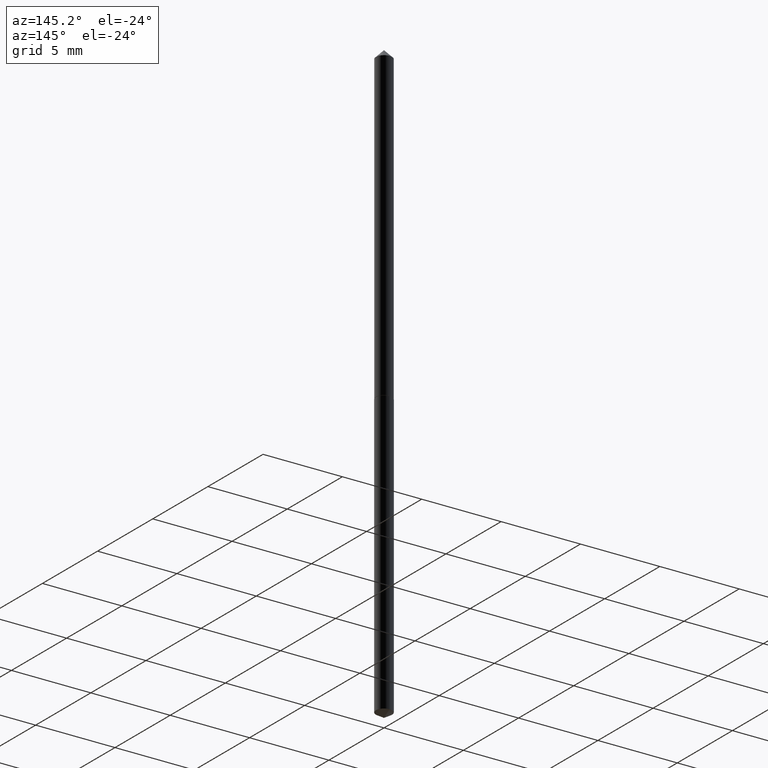
[diagram: clean part render]
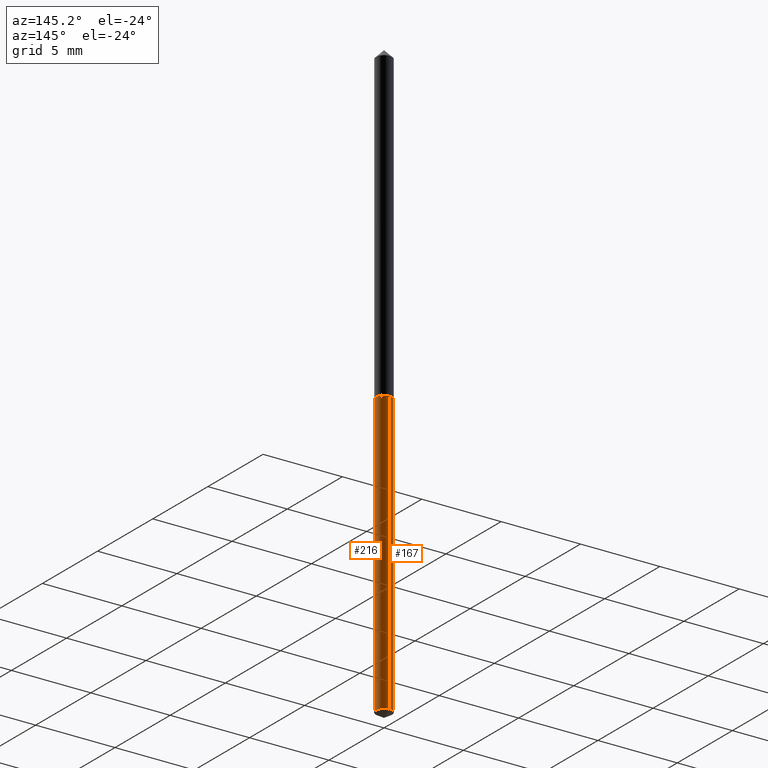
[diagram: same view with one multi-face feature highlighted, each face labeled with its STEP entity id]
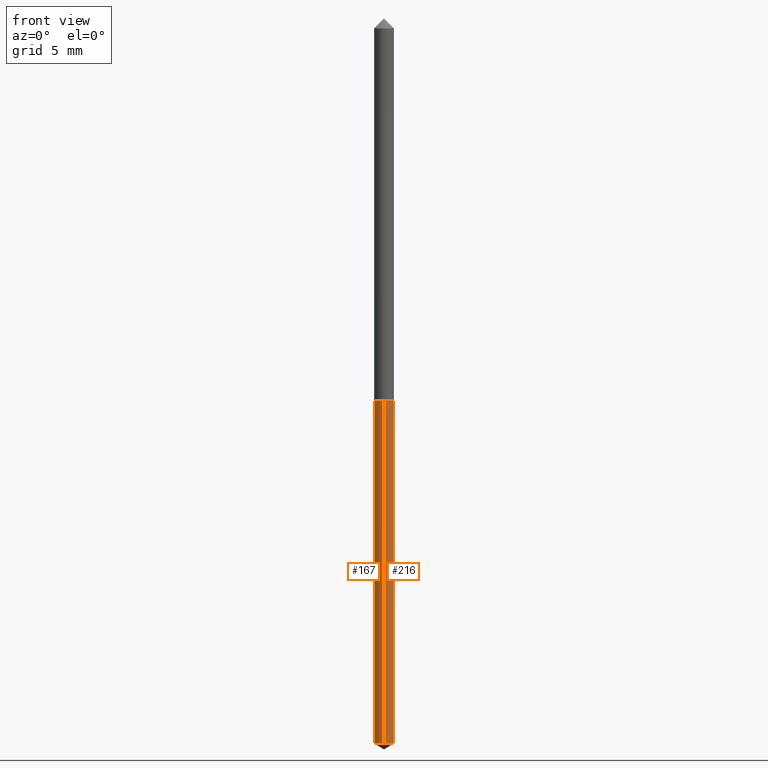
[diagram: same view with one multi-face feature highlighted, each face labeled with its STEP entity id]
A machine part, auxiliary view. The highlighted faces form ONE feature: a constant-radius fillet chain: 2 tangent blend faces with common blend radius 0.508 mm. The faces share edges in the B-rep.
A second angle (front view) of the same feature is appended — it is thin or edge-on in the first view.
Their STEP definitions:
[1] entity #216 (Cylinder):
#15 = CARTESIAN_POINT ( 'NONE',  ( -1.396592535536889283E-16, -0.02000000000000519765, -1.487982787619448688 ) ) ;
#23 = EDGE_CURVE ( 'NONE', #100, #287, #76, .T. ) ;
#31 = AXIS2_PLACEMENT_3D ( 'NONE', #347, #233, #350 ) ;
#33 = VERTEX_POINT ( 'NONE', #206 ) ;
#37 = VECTOR ( 'NONE', #131, 39.37007874015748143 ) ;
#47 = DIRECTION ( 'NONE',  ( -2.445556676142021675E-29, 3.491355504063638295E-15, 1.000000000000000000 ) ) ;
#50 = EDGE_CURVE ( 'NONE', #33, #173, #293, .T. ) ;
#51 = DIRECTION ( 'NONE',  ( -2.445556676142021675E-29, 3.491355504063638689E-15, 1.000000000000000000 ) ) ;
#70 = CARTESIAN_POINT ( 'NONE',  ( -1.396592535537060120E-16, -0.02000000000000275863, -0.7900000000000000355 ) ) ;
#72 = VECTOR ( 'NONE', #47, 39.37007874015748143 ) ;
#76 = LINE ( 'NONE', #70, #72 ) ;
#100 = VERTEX_POINT ( 'NONE', #15 ) ;
#112 = CIRCLE ( 'NONE', #333, 0.02000000000000000042 ) ;
#124 = EDGE_CURVE ( 'NONE', #287, #173, #212, .T. ) ;
#131 = DIRECTION ( 'NONE',  ( -2.445556676142021675E-29, 3.491355504063638295E-15, 1.000000000000000000 ) ) ;
#141 = ORIENTED_EDGE ( 'NONE', *, *, #23, .F. ) ;
#159 = CARTESIAN_POINT ( 'NONE',  ( 1.421085471520393179E-16, 0.01999999999999724221, -0.7900000000000003686 ) ) ;
#161 = CARTESIAN_POINT ( 'NONE',  ( 1.931920356886258349E-29, -2.758270257686085290E-15, -0.7900000000000001465 ) ) ;
#173 = VERTEX_POINT ( 'NONE', #238 ) ;
#189 = CARTESIAN_POINT ( 'NONE',  ( -1.396592535537060120E-16, -0.02000000000000275863, -0.7900000000000000355 ) ) ;
#194 = AXIS2_PLACEMENT_3D ( 'NONE', #161, #51, #269 ) ;
#195 = DIRECTION ( 'NONE',  ( -6.982962677686265922E-15, -1.000000000000000000, 0.000000000000000000 ) ) ;
#206 = CARTESIAN_POINT ( 'NONE',  ( 1.421085471520564263E-16, 0.01999999999999480665, -1.487982787619448688 ) ) ;
#212 = CIRCLE ( 'NONE', #31, 0.02000000000000000042 ) ;
#216 = ADVANCED_FACE ( 'NONE', ( #297 ), #240, .T. ) ;
#233 = DIRECTION ( 'NONE',  ( -2.445556676142021675E-29, 3.491355504063638689E-15, 1.000000000000000000 ) ) ;
#238 = CARTESIAN_POINT ( 'NONE',  ( 1.421085471520565496E-16, 0.01999999999999724221, -0.7900000000000003686 ) ) ;
#240 = CYLINDRICAL_SURFACE ( 'NONE', #194, 0.02000000000000000042 ) ;
#266 = EDGE_CURVE ( 'NONE', #100, #33, #112, .T. ) ;
#269 = DIRECTION ( 'NONE',  ( -6.982962677686265922E-15, -1.000000000000000000, 6.829619984160658243E-15 ) ) ;
#284 = ORIENTED_EDGE ( 'NONE', *, *, #266, .T. ) ;
#287 = VERTEX_POINT ( 'NONE', #189 ) ;
#293 = LINE ( 'NONE', #159, #37 ) ;
#297 = FACE_OUTER_BOUND ( 'NONE', #306, .T. ) ;
#302 = CARTESIAN_POINT ( 'NONE',  ( 3.638876822981220103E-29, -5.195176304982929067E-15, -1.487982787619448688 ) ) ;
#305 = DIRECTION ( 'NONE',  ( -2.445556676142021675E-29, 3.491355504063638689E-15, 1.000000000000000000 ) ) ;
#306 = EDGE_LOOP ( 'NONE', ( #284, #314, #312, #141 ) ) ;
#312 = ORIENTED_EDGE ( 'NONE', *, *, #124, .F. ) ;
#314 = ORIENTED_EDGE ( 'NONE', *, *, #50, .T. ) ;
#333 = AXIS2_PLACEMENT_3D ( 'NONE', #302, #305, #195 ) ;
#347 = CARTESIAN_POINT ( 'NONE',  ( 1.931920356886258349E-29, -2.758270257686085290E-15, -0.7900000000000001465 ) ) ;
#350 = DIRECTION ( 'NONE',  ( -6.982962677686265922E-15, -1.000000000000000000, 6.829619984160658243E-15 ) ) ;
[2] entity #167 (Cylinder):
#15 = CARTESIAN_POINT ( 'NONE',  ( -1.396592535536889283E-16, -0.02000000000000519765, -1.487982787619448688 ) ) ;
#21 = DIRECTION ( 'NONE',  ( -2.445556676142021675E-29, 3.491355504063638689E-15, 1.000000000000000000 ) ) ;
#23 = EDGE_CURVE ( 'NONE', #100, #287, #76, .T. ) ;
#33 = VERTEX_POINT ( 'NONE', #206 ) ;
#37 = VECTOR ( 'NONE', #131, 39.37007874015748143 ) ;
#42 = DIRECTION ( 'NONE',  ( -6.982962677686265922E-15, -1.000000000000000000, 6.829619984160658243E-15 ) ) ;
#47 = DIRECTION ( 'NONE',  ( -2.445556676142021675E-29, 3.491355504063638295E-15, 1.000000000000000000 ) ) ;
#50 = EDGE_CURVE ( 'NONE', #33, #173, #293, .T. ) ;
#70 = CARTESIAN_POINT ( 'NONE',  ( -1.396592535537060120E-16, -0.02000000000000275863, -0.7900000000000000355 ) ) ;
#72 = VECTOR ( 'NONE', #47, 39.37007874015748143 ) ;
#76 = LINE ( 'NONE', #70, #72 ) ;
#91 = EDGE_CURVE ( 'NONE', #173, #287, #286, .T. ) ;
#100 = VERTEX_POINT ( 'NONE', #15 ) ;
#110 = CARTESIAN_POINT ( 'NONE',  ( 3.638876822981220103E-29, -5.195176304982929067E-15, -1.487982787619448688 ) ) ;
#129 = ORIENTED_EDGE ( 'NONE', *, *, #50, .F. ) ;
#131 = DIRECTION ( 'NONE',  ( -2.445556676142021675E-29, 3.491355504063638295E-15, 1.000000000000000000 ) ) ;
#134 = AXIS2_PLACEMENT_3D ( 'NONE', #267, #21, #136 ) ;
#136 = DIRECTION ( 'NONE',  ( -6.982962677686265922E-15, -1.000000000000000000, 6.829619984160658243E-15 ) ) ;
#138 = DIRECTION ( 'NONE',  ( -2.445556676142021675E-29, 3.491355504063638689E-15, 1.000000000000000000 ) ) ;
#147 = AXIS2_PLACEMENT_3D ( 'NONE', #110, #138, #327 ) ;
#154 = AXIS2_PLACEMENT_3D ( 'NONE', #158, #325, #42 ) ;
#158 = CARTESIAN_POINT ( 'NONE',  ( 1.931920356886258349E-29, -2.758270257686085290E-15, -0.7900000000000001465 ) ) ;
#159 = CARTESIAN_POINT ( 'NONE',  ( 1.421085471520393179E-16, 0.01999999999999724221, -0.7900000000000003686 ) ) ;
#167 = ADVANCED_FACE ( 'NONE', ( #296 ), #259, .T. ) ;
#171 = EDGE_LOOP ( 'NONE', ( #129, #340, #258, #243 ) ) ;
#173 = VERTEX_POINT ( 'NONE', #238 ) ;
#189 = CARTESIAN_POINT ( 'NONE',  ( -1.396592535537060120E-16, -0.02000000000000275863, -0.7900000000000000355 ) ) ;
#191 = EDGE_CURVE ( 'NONE', #33, #100, #300, .T. ) ;
#206 = CARTESIAN_POINT ( 'NONE',  ( 1.421085471520564263E-16, 0.01999999999999480665, -1.487982787619448688 ) ) ;
#238 = CARTESIAN_POINT ( 'NONE',  ( 1.421085471520565496E-16, 0.01999999999999724221, -0.7900000000000003686 ) ) ;
#243 = ORIENTED_EDGE ( 'NONE', *, *, #91, .F. ) ;
#258 = ORIENTED_EDGE ( 'NONE', *, *, #23, .T. ) ;
#259 = CYLINDRICAL_SURFACE ( 'NONE', #134, 0.02000000000000000042 ) ;
#267 = CARTESIAN_POINT ( 'NONE',  ( 1.931920356886258349E-29, -2.758270257686085290E-15, -0.7900000000000001465 ) ) ;
#286 = CIRCLE ( 'NONE', #154, 0.02000000000000000042 ) ;
#287 = VERTEX_POINT ( 'NONE', #189 ) ;
#293 = LINE ( 'NONE', #159, #37 ) ;
#296 = FACE_OUTER_BOUND ( 'NONE', #171, .T. ) ;
#300 = CIRCLE ( 'NONE', #147, 0.02000000000000000042 ) ;
#325 = DIRECTION ( 'NONE',  ( -2.445556676142021675E-29, 3.491355504063638689E-15, 1.000000000000000000 ) ) ;
#327 = DIRECTION ( 'NONE',  ( -6.982962677686265922E-15, -1.000000000000000000, 0.000000000000000000 ) ) ;
#340 = ORIENTED_EDGE ( 'NONE', *, *, #191, .T. ) ;